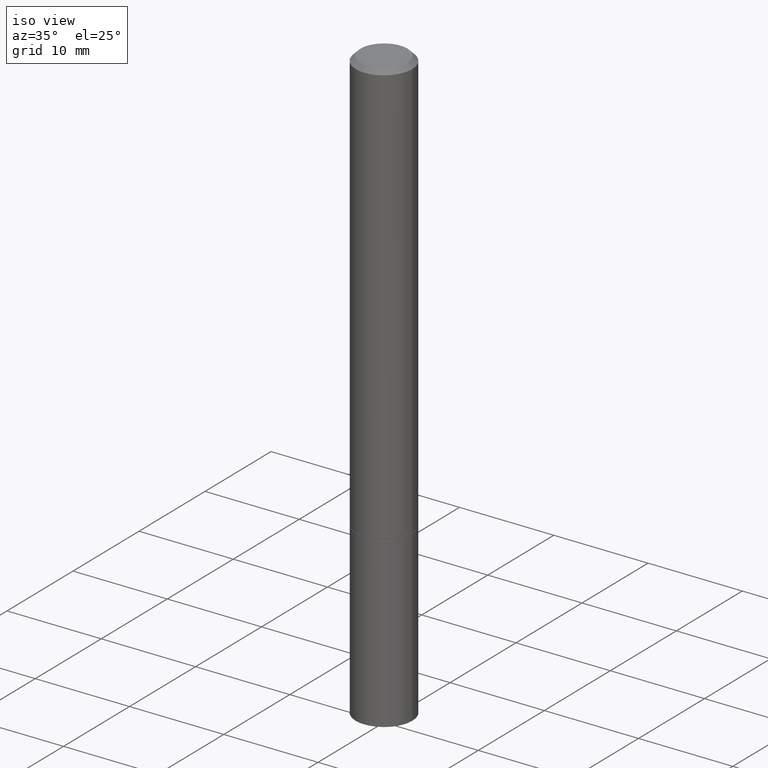
[diagram: clean part render]
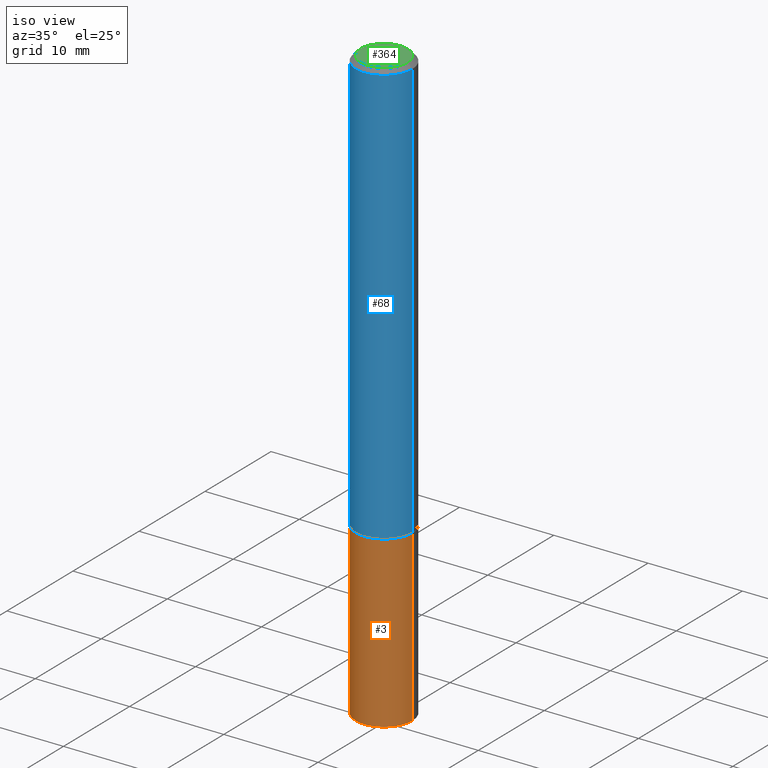
[diagram: same view with three faces highlighted in distinct colors, each labeled with its STEP entity id]
A machine part, iso view with three faces highlighted in distinct colors.
Their STEP definitions:

[orange] entity #3 — the highlighted cylindrical surface (edge-blend (fillet) strip) has radius 2.9997 mm, axis along (-0, 0, 1).
#3 = ADVANCED_FACE ( 'NONE', ( #36 ), #99, .T. ) ;
#4 = LINE ( 'NONE', #27, #299 ) ;
#18 = DIRECTION ( 'NONE',  ( -2.445468806185136597E-29, 3.491481338843145583E-15, 1.000000000000000000 ) ) ;
#19 = DIRECTION ( 'NONE',  ( -2.445468806185136597E-29, 3.491481338843145583E-15, 1.000000000000000000 ) ) ;
#27 = CARTESIAN_POINT ( 'NONE',  ( -0.1180999999999999966, 8.391509709326782957E-16, -5.809262341591043784E-30 ) ) ;
#36 = FACE_OUTER_BOUND ( 'NONE', #272, .T. ) ;
#46 = CARTESIAN_POINT ( 'NONE',  ( 0.1180999999999999966, -7.010196232129265043E-15, -1.771600000000000286 ) ) ;
#59 = AXIS2_PLACEMENT_3D ( 'NONE', #362, #18, #140 ) ;
#77 = EDGE_CURVE ( 'NONE', #289, #135, #87, .T. ) ;
#87 = CIRCLE ( 'NONE', #59, 0.1180999999999999966 ) ;
#90 = CARTESIAN_POINT ( 'NONE',  ( -0.1180999999999999966, -6.583563781380907467E-15, -2.480300000000000171 ) ) ;
#92 = EDGE_CURVE ( 'NONE', #162, #132, #222, .T. ) ;
#99 = CYLINDRICAL_SURFACE ( 'NONE', #343, 0.1180999999999999966 ) ;
#104 = EDGE_CURVE ( 'NONE', #135, #132, #251, .T. ) ;
#116 = VECTOR ( 'NONE', #278, 39.37007874015748143 ) ;
#130 = ORIENTED_EDGE ( 'NONE', *, *, #212, .F. ) ;
#132 = VERTEX_POINT ( 'NONE', #46 ) ;
#135 = VERTEX_POINT ( 'NONE', #165 ) ;
#138 = AXIS2_PLACEMENT_3D ( 'NONE', #193, #19, #192 ) ;
#140 = DIRECTION ( 'NONE',  ( 1.000000000000000000, -6.982962677686273021E-15, 0.000000000000000000 ) ) ;
#155 = CARTESIAN_POINT ( 'NONE',  ( 0.000000000000000000, 0.000000000000000000, 0.000000000000000000 ) ) ;
#162 = VERTEX_POINT ( 'NONE', #198 ) ;
#165 = CARTESIAN_POINT ( 'NONE',  ( 0.1180999999999999966, -9.484609056967403598E-15, -2.480300000000000171 ) ) ;
#170 = CARTESIAN_POINT ( 'NONE',  ( 0.1180999999999999966, -8.246878922347480654E-16, 5.758764772215000440E-30 ) ) ;
#192 = DIRECTION ( 'NONE',  ( 1.000000000000000000, -6.982962677686265133E-15, 0.000000000000000000 ) ) ;
#193 = CARTESIAN_POINT ( 'NONE',  ( 4.332392537037588763E-29, -6.185508339894517569E-15, -1.771600000000000286 ) ) ;
#198 = CARTESIAN_POINT ( 'NONE',  ( -0.1180999999999999966, -6.583563781380907467E-15, -1.771600000000000286 ) ) ;
#212 = EDGE_CURVE ( 'NONE', #289, #162, #4, .T. ) ;
#222 = CIRCLE ( 'NONE', #138, 0.1180999999999999966 ) ;
#237 = ORIENTED_EDGE ( 'NONE', *, *, #92, .F. ) ;
#251 = LINE ( 'NONE', #170, #116 ) ;
#258 = ORIENTED_EDGE ( 'NONE', *, *, #104, .T. ) ;
#267 = DIRECTION ( 'NONE',  ( 1.000000000000000000, -6.982962677686266711E-15, 4.876176775795936353E-29 ) ) ;
#272 = EDGE_LOOP ( 'NONE', ( #130, #320, #258, #237 ) ) ;
#278 = DIRECTION ( 'NONE',  ( -2.445468806185136877E-29, 3.491481338843145188E-15, 1.000000000000000000 ) ) ;
#288 = DIRECTION ( 'NONE',  ( -2.445468806185136877E-29, 3.491481338843145188E-15, 1.000000000000000000 ) ) ;
#289 = VERTEX_POINT ( 'NONE', #90 ) ;
#299 = VECTOR ( 'NONE', #288, 39.37007874015748143 ) ;
#320 = ORIENTED_EDGE ( 'NONE', *, *, #77, .T. ) ;
#329 = DIRECTION ( 'NONE',  ( -2.445468806185136597E-29, 3.491481338843145583E-15, 1.000000000000000000 ) ) ;
#343 = AXIS2_PLACEMENT_3D ( 'NONE', #155, #329, #267 ) ;
#362 = CARTESIAN_POINT ( 'NONE',  ( 6.065496279980994755E-29, -8.659921164732655335E-15, -2.480300000000000171 ) ) ;

[blue] entity #68 — the highlighted cylindrical surface (edge-blend (fillet) strip) has radius 2.9997 mm, axis along (-0, 0, 1).
#2 = DIRECTION ( 'NONE',  ( 1.000000000000000000, -6.982962677686265922E-15, 0.000000000000000000 ) ) ;
#8 = VECTOR ( 'NONE', #201, 39.37007874015748143 ) ;
#14 = ORIENTED_EDGE ( 'NONE', *, *, #303, .F. ) ;
#15 = EDGE_CURVE ( 'NONE', #124, #181, #101, .T. ) ;
#41 = ORIENTED_EDGE ( 'NONE', *, *, #15, .T. ) ;
#47 = CIRCLE ( 'NONE', #98, 0.1180999999999999966 ) ;
#52 = FACE_OUTER_BOUND ( 'NONE', #178, .T. ) ;
#60 = CIRCLE ( 'NONE', #66, 0.1180999999999997746 ) ;
#64 = DIRECTION ( 'NONE',  ( -2.445468806185136597E-29, 3.491481338843145583E-15, 1.000000000000000000 ) ) ;
#66 = AXIS2_PLACEMENT_3D ( 'NONE', #261, #64, #2 ) ;
#68 = ADVANCED_FACE ( 'NONE', ( #52 ), #225, .T. ) ;
#98 = AXIS2_PLACEMENT_3D ( 'NONE', #257, #151, #236 ) ;
#101 = LINE ( 'NONE', #214, #255 ) ;
#103 = ORIENTED_EDGE ( 'NONE', *, *, #292, .F. ) ;
#110 = CARTESIAN_POINT ( 'NONE',  ( 0.1180999999999999966, -7.006704750790422825E-15, -1.770600000000000174 ) ) ;
#112 = DIRECTION ( 'NONE',  ( -2.445468806185136597E-29, 3.491481338843145583E-15, 1.000000000000000000 ) ) ;
#124 = VERTEX_POINT ( 'NONE', #110 ) ;
#151 = DIRECTION ( 'NONE',  ( -2.445468806185136597E-29, 3.491481338843145583E-15, 1.000000000000000000 ) ) ;
#153 = ORIENTED_EDGE ( 'NONE', *, *, #316, .T. ) ;
#178 = EDGE_LOOP ( 'NONE', ( #103, #153, #41, #14 ) ) ;
#181 = VERTEX_POINT ( 'NONE', #227 ) ;
#201 = DIRECTION ( 'NONE',  ( -2.445468806185136877E-29, 3.491481338843145188E-15, 1.000000000000000000 ) ) ;
#214 = CARTESIAN_POINT ( 'NONE',  ( 0.1180999999999998995, -8.246878922347473751E-16, 5.758764772214994835E-30 ) ) ;
#225 = CYLINDRICAL_SURFACE ( 'NONE', #260, 0.1180999999999998995 ) ;
#227 = CARTESIAN_POINT ( 'NONE',  ( 0.1180999999999997746, -8.800544403136792597E-16, -0.02000000000000003511 ) ) ;
#230 = LINE ( 'NONE', #340, #8 ) ;
#236 = DIRECTION ( 'NONE',  ( 1.000000000000000000, -6.982962677686265133E-15, 0.000000000000000000 ) ) ;
#240 = VERTEX_POINT ( 'NONE', #365 ) ;
#252 = CARTESIAN_POINT ( 'NONE',  ( 0.000000000000000000, 0.000000000000000000, 0.000000000000000000 ) ) ;
#255 = VECTOR ( 'NONE', #325, 39.37007874015748143 ) ;
#257 = CARTESIAN_POINT ( 'NONE',  ( 4.329947068231403160E-29, -6.182016858555674562E-15, -1.770600000000000174 ) ) ;
#260 = AXIS2_PLACEMENT_3D ( 'NONE', #252, #112, #356 ) ;
#261 = CARTESIAN_POINT ( 'NONE',  ( 4.890937612370281041E-31, -6.982962677686302702E-17, -0.02000000000000003511 ) ) ;
#292 = EDGE_CURVE ( 'NONE', #327, #240, #230, .T. ) ;
#303 = EDGE_CURVE ( 'NONE', #240, #181, #60, .T. ) ;
#316 = EDGE_CURVE ( 'NONE', #327, #124, #47, .T. ) ;
#325 = DIRECTION ( 'NONE',  ( -2.445468806185136877E-29, 3.491481338843145188E-15, 1.000000000000000000 ) ) ;
#327 = VERTEX_POINT ( 'NONE', #342 ) ;
#340 = CARTESIAN_POINT ( 'NONE',  ( -0.1180999999999998995, 8.391509709326776054E-16, -5.809262341591038879E-30 ) ) ;
#342 = CARTESIAN_POINT ( 'NONE',  ( -0.1180999999999999966, -2.286772271733587972E-15, -1.770600000000000174 ) ) ;
#356 = DIRECTION ( 'NONE',  ( 1.000000000000000000, -6.982962677686266711E-15, 4.876176775795935232E-29 ) ) ;
#365 = CARTESIAN_POINT ( 'NONE',  ( -0.1180999999999997746, 7.548582654578835839E-16, -0.02000000000000003511 ) ) ;

[green] entity #364 — the highlighted planar face has unit normal (0, -0, -1).
#33 = EDGE_CURVE ( 'NONE', #349, #219, #81, .T. ) ;
#37 = CIRCLE ( 'NONE', #73, 0.09809999999999981235 ) ;
#62 = CARTESIAN_POINT ( 'NONE',  ( 0.09809999999999981235, -7.765346469475326737E-16, -1.707404996039653601E-17 ) ) ;
#72 = CARTESIAN_POINT ( 'NONE',  ( 4.175405657340879278E-46, -5.961372681521788801E-32, -1.707404996040164512E-17 ) ) ;
#73 = AXIS2_PLACEMENT_3D ( 'NONE', #359, #221, #254 ) ;
#79 = ORIENTED_EDGE ( 'NONE', *, *, #33, .T. ) ;
#81 = CIRCLE ( 'NONE', #244, 0.09809999999999981235 ) ;
#108 = EDGE_LOOP ( 'NONE', ( #188, #79 ) ) ;
#119 = DIRECTION ( 'NONE',  ( -1.000000000000000000, 6.982962677686265922E-15, -4.876176775795935793E-29 ) ) ;
#123 = CARTESIAN_POINT ( 'NONE',  ( 6.850286386810214690E-16, 0.09809999999999981235, -3.510513443207127712E-16 ) ) ;
#125 = EDGE_CURVE ( 'NONE', #219, #349, #37, .T. ) ;
#144 = PLANE ( 'NONE',  #301 ) ;
#147 = CARTESIAN_POINT ( 'NONE',  ( -0.09809999999999981235, 7.199434520694525264E-16, -1.707404996040655701E-17 ) ) ;
#159 = DIRECTION ( 'NONE',  ( -2.445468806185136597E-29, 3.491481338843145583E-15, 1.000000000000000000 ) ) ;
#188 = ORIENTED_EDGE ( 'NONE', *, *, #125, .T. ) ;
#219 = VERTEX_POINT ( 'NONE', #147 ) ;
#221 = DIRECTION ( 'NONE',  ( -2.445468806185136597E-29, 3.491481338843145583E-15, 1.000000000000000000 ) ) ;
#244 = AXIS2_PLACEMENT_3D ( 'NONE', #72, #159, #268 ) ;
#254 = DIRECTION ( 'NONE',  ( 1.000000000000000000, -6.982962677686267499E-15, 4.875229006325906821E-29 ) ) ;
#268 = DIRECTION ( 'NONE',  ( 1.000000000000000000, -6.982962677686267499E-15, 4.875229006325906821E-29 ) ) ;
#281 = FACE_OUTER_BOUND ( 'NONE', #108, .T. ) ;
#301 = AXIS2_PLACEMENT_3D ( 'NONE', #123, #366, #119 ) ;
#349 = VERTEX_POINT ( 'NONE', #62 ) ;
#359 = CARTESIAN_POINT ( 'NONE',  ( 4.175405657340879278E-46, -5.961372681521788801E-32, -1.707404996040164512E-17 ) ) ;
#364 = ADVANCED_FACE ( 'NONE', ( #281 ), #144, .F. ) ;
#366 = DIRECTION ( 'NONE',  ( 2.438088387897960049E-29, -3.491481338843145188E-15, -1.000000000000000000 ) ) ;